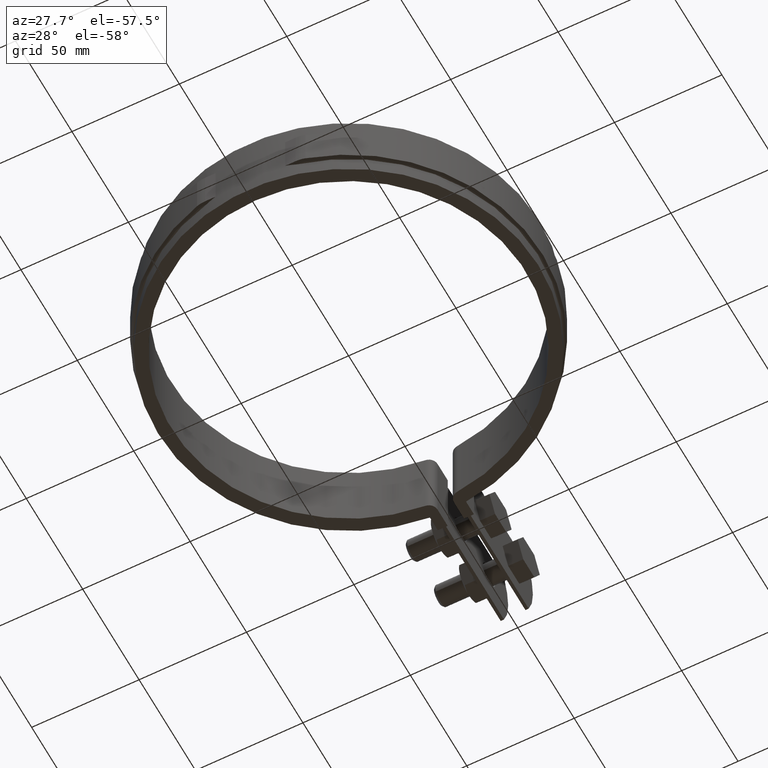
[diagram: clean part render]
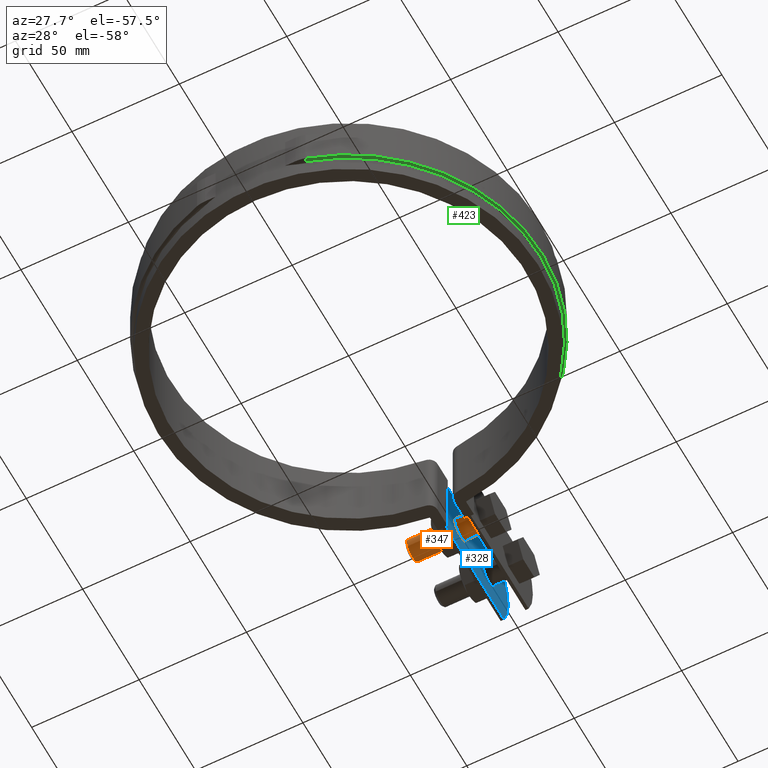
[diagram: same view with three faces highlighted in distinct colors, each labeled with its STEP entity id]
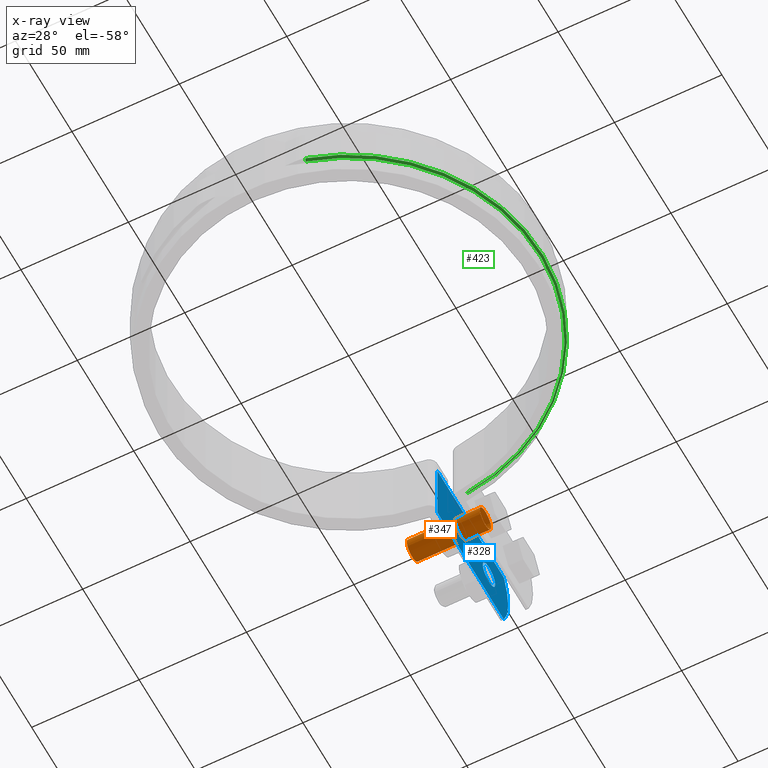
[diagram: x-ray of the same camera — body ghosted, the three highlighted faces saturated]
A machine part, auxiliary view with three faces highlighted in distinct colors.
The next image is the same camera in x-ray (body ghosted, the three faces saturated) — at least one of them is partly hidden behind the body in this view.
Their STEP definitions:

[orange] entity #347 — the highlighted cylindrical surface (bore or boss wall) has radius 5 mm, axis along (-1, -0, 0).
#347 = ADVANCED_FACE( '', ( #548, #549 ), #550, .T. );
#548 = FACE_OUTER_BOUND( '', #1261, .T. );
#549 = FACE_OUTER_BOUND( '', #1262, .T. );
#550 = CYLINDRICAL_SURFACE( '', #1263, 4.99999999999852 );
#1261 = EDGE_LOOP( '', ( #2906 ) );
#1262 = EDGE_LOOP( '', ( #2907 ) );
#1263 = AXIS2_PLACEMENT_3D( '', #2908, #2909, #2910 );
#2906 = ORIENTED_EDGE( '', *, *, #4700, .T. );
#2907 = ORIENTED_EDGE( '', *, *, #4694, .F. );
#2908 = CARTESIAN_POINT( '', ( -28.5000000000000, 109.002813742385, -16.0000000000000 ) );
#2909 = DIRECTION( '', ( -1.00000000000000, -6.26427921880513E-017, 0.000000000000000 ) );
#2910 = DIRECTION( '', ( 5.42502493988419E-017, -0.866025403784439, -0.500000000000000 ) );
#4694 = EDGE_CURVE( '', #5142, #5142, #5143, .T. );
#4700 = EDGE_CURVE( '', #5152, #5152, #5153, .T. );
#5142 = VERTEX_POINT( '', #6820 );
#5143 = CIRCLE( '', #6821, 4.99999999999852 );
#5152 = VERTEX_POINT( '', #6835 );
#5153 = CIRCLE( '', #6836, 4.99999999999852 );
#6820 = CARTESIAN_POINT( '', ( 6.50000000000000, 104.672686723464, -18.4999999999993 ) );
#6821 = AXIS2_PLACEMENT_3D( '', #8728, #8729, #8730 );
#6835 = CARTESIAN_POINT( '', ( -27.5000000000000, 104.672686723464, -18.4999999999993 ) );
#6836 = AXIS2_PLACEMENT_3D( '', #8736, #8737, #8738 );
#8728 = CARTESIAN_POINT( '', ( 6.50000000000000, 109.002813742385, -16.0000000000000 ) );
#8729 = DIRECTION( '', ( 1.00000000000000, 6.26427921880513E-017, 0.000000000000000 ) );
#8730 = DIRECTION( '', ( 5.42502493988419E-017, -0.866025403784439, -0.500000000000000 ) );
#8736 = CARTESIAN_POINT( '', ( -27.5000000000000, 109.002813742385, -16.0000000000000 ) );
#8737 = DIRECTION( '', ( 1.00000000000000, 6.26427921880513E-017, 0.000000000000000 ) );
#8738 = DIRECTION( '', ( 5.42502493988419E-017, -0.866025403784439, -0.500000000000000 ) );

[blue] entity #328 — the highlighted planar face has unit normal (1, -0, 0).
#328 = ADVANCED_FACE( '', ( #498, #499, #500 ), #501, .T. );
#498 = FACE_BOUND( '', #838, .T. );
#499 = FACE_BOUND( '', #839, .T. );
#500 = FACE_OUTER_BOUND( '', #840, .T. );
#501 = PLANE( '', #841 );
#838 = EDGE_LOOP( '', ( #2740 ) );
#839 = EDGE_LOOP( '', ( #2741 ) );
#840 = EDGE_LOOP( '', ( #2742, #2743, #2744, #2745 ) );
#841 = AXIS2_PLACEMENT_3D( '', #2746, #2747, #2748 );
#2740 = ORIENTED_EDGE( '', *, *, #4653, .T. );
#2741 = ORIENTED_EDGE( '', *, *, #4613, .T. );
#2742 = ORIENTED_EDGE( '', *, *, #4655, .T. );
#2743 = ORIENTED_EDGE( '', *, *, #4656, .T. );
#2744 = ORIENTED_EDGE( '', *, *, #4657, .F. );
#2745 = ORIENTED_EDGE( '', *, *, #4658, .T. );
#2746 = CARTESIAN_POINT( '', ( -4.99999999999999, 151.002813742386, 0.000000000000000 ) );
#2747 = DIRECTION( '', ( 1.00000000000000, -6.07153216591882E-017, 0.000000000000000 ) );
#2748 = DIRECTION( '', ( -6.07153216591882E-017, -1.00000000000000, 0.000000000000000 ) );
#4613 = EDGE_CURVE( '', #5004, #5004, #5005, .T. );
#4653 = EDGE_CURVE( '', #5074, #5074, #5075, .T. );
#4655 = EDGE_CURVE( '', #5078, #5079, #5080, .T. );
#4656 = EDGE_CURVE( '', #5079, #5081, #5082, .T. );
#4657 = EDGE_CURVE( '', #5083, #5081, #5084, .T. );
#4658 = EDGE_CURVE( '', #5083, #5078, #5085, .T. );
#5004 = VERTEX_POINT( '', #5897 );
#5005 = CIRCLE( '', #5898, 5.50000000000000 );
#5074 = VERTEX_POINT( '', #6667 );
#5075 = CIRCLE( '', #6668, 5.50000000000000 );
#5078 = VERTEX_POINT( '', #6671 );
#5079 = VERTEX_POINT( '', #6672 );
#5080 = LINE( '', #6673, #6674 );
#5081 = VERTEX_POINT( '', #6675 );
#5082 = LINE( '', #6676, #6677 );
#5083 = VERTEX_POINT( '', #6678 );
#5084 = LINE( '', #6679, #6680 );
#5085 = CIRCLE( '', #6681, 36.0000000000000 );
#5897 = CARTESIAN_POINT( '', ( -4.99999850011914, 109.002813742385, -10.5000000000000 ) );
#5898 = AXIS2_PLACEMENT_3D( '', #8614, #8615, #8616 );
#6667 = CARTESIAN_POINT( '', ( -4.99999850011914, 134.002813742385, -10.5000000000000 ) );
#6668 = AXIS2_PLACEMENT_3D( '', #8658, #8659, #8660 );
#6671 = CARTESIAN_POINT( '', ( -4.99999999999999, 147.251844735580, 0.000000000000000 ) );
#6672 = CARTESIAN_POINT( '', ( -4.99999999999999, 88.2723059628557, 0.000000000000000 ) );
#6673 = CARTESIAN_POINT( '', ( -4.99999999999999, 151.002813742386, 0.000000000000000 ) );
#6674 = VECTOR( '', #8664, 1000.00000000000 );
#6675 = CARTESIAN_POINT( '', ( -4.99999999999999, 88.2723059628557, -32.0000000000000 ) );
#6676 = CARTESIAN_POINT( '', ( -4.99999999999999, 88.2723059628557, 0.000000000000000 ) );
#6677 = VECTOR( '', #8665, 1000.00000000000 );
#6678 = CARTESIAN_POINT( '', ( -4.99999999999999, 147.251844735580, -32.0000000000000 ) );
#6679 = CARTESIAN_POINT( '', ( -4.99999999999999, 151.002813742386, -32.0000000000000 ) );
#6680 = VECTOR( '', #8666, 1000.00000000000 );
#6681 = AXIS2_PLACEMENT_3D( '', #8667, #8668, #8669 );
#8614 = CARTESIAN_POINT( '', ( -4.99999850011914, 109.002813742385, -16.0000000000000 ) );
#8615 = DIRECTION( '', ( -1.00000000000000, -4.12391080879941E-016, 0.000000000000000 ) );
#8616 = DIRECTION( '', ( 0.000000000000000, 0.000000000000000, 1.00000000000000 ) );
#8658 = CARTESIAN_POINT( '', ( -4.99999850011914, 134.002813742385, -16.0000000000000 ) );
#8659 = DIRECTION( '', ( -1.00000000000000, -4.12391080879941E-016, 0.000000000000000 ) );
#8660 = DIRECTION( '', ( 0.000000000000000, 0.000000000000000, 1.00000000000000 ) );
#8664 = DIRECTION( '', ( -6.07153216591882E-017, -1.00000000000000, 0.000000000000000 ) );
#8665 = DIRECTION( '', ( 0.000000000000000, 0.000000000000000, -1.00000000000000 ) );
#8666 = DIRECTION( '', ( -6.07153216591882E-017, -1.00000000000000, 0.000000000000000 ) );
#8667 = CARTESIAN_POINT( '', ( -4.99999999999998, 115.002813742385, -16.0000000000000 ) );
#8668 = DIRECTION( '', ( 1.00000000000000, -6.07153216591882E-017, 0.000000000000000 ) );
#8669 = DIRECTION( '', ( 6.07153216591882E-017, 1.00000000000000, 0.000000000000000 ) );

[green] entity #423 — the highlighted conical surface has half-angle 45 deg.
#423 = ADVANCED_FACE( '', ( #710 ), #711, .T. );
#710 = FACE_OUTER_BOUND( '', #1796, .T. );
#711 = CONICAL_SURFACE( '', #1797, 90.0000000000000, 0.785398163397441 );
#1796 = EDGE_LOOP( '', ( #4256, #4257, #4258, #4259 ) );
#1797 = AXIS2_PLACEMENT_3D( '', #4260, #4261, #4262 );
#4256 = ORIENTED_EDGE( '', *, *, #4908, .F. );
#4257 = ORIENTED_EDGE( '', *, *, #4891, .F. );
#4258 = ORIENTED_EDGE( '', *, *, #4910, .F. );
#4259 = ORIENTED_EDGE( '', *, *, #4884, .F. );
#4260 = CARTESIAN_POINT( '', ( 1.38777878078145E-014, -4.16333634234434E-014, -25.0000000000000 ) );
#4261 = DIRECTION( '', ( 0.000000000000000, 0.000000000000000, 1.00000000000000 ) );
#4262 = DIRECTION( '', ( 1.00000000000000, 0.000000000000000, 0.000000000000000 ) );
#4884 = EDGE_CURVE( '', #5465, #5461, #5467, .F. );
#4891 = EDGE_CURVE( '', #5478, #5473, #5480, .T. );
#4908 = EDGE_CURVE( '', #5473, #5465, #5501, .T. );
#4910 = EDGE_CURVE( '', #5461, #5478, #5503, .T. );
#5461 = VERTEX_POINT( '', #8305 );
#5465 = VERTEX_POINT( '', #8310 );
#5467 = CIRCLE( '', #8313, 89.0000000000000 );
#5473 = VERTEX_POINT( '', #8322 );
#5478 = VERTEX_POINT( '', #8328 );
#5480 = CIRCLE( '', #8331, 90.0000000000000 );
#5501 = B_SPLINE_CURVE_WITH_KNOTS( '', 3, ( #8360, #8361, #8362, #8363 ), .UNSPECIFIED., .F., .F., ( 4, 4 ), ( 3.46944695195361E-017, 0.00141735220717068 ), .UNSPECIFIED. );
#5503 = LINE( '', #8368, #8369 );
#8305 = CARTESIAN_POINT( '', ( 24.9200000000000, -85.4400000000000, -26.0000000000000 ) );
#8310 = CARTESIAN_POINT( '', ( 8.40000000000002, 88.6027087622043, -26.0000000000000 ) );
#8313 = AXIS2_PLACEMENT_3D( '', #8992, #8993, #8994 );
#8322 = CARTESIAN_POINT( '', ( 8.39999999999997, 89.6071425724534, -25.0000000000000 ) );
#8328 = CARTESIAN_POINT( '', ( 25.2000000000000, -86.4000000000000, -25.0000000000000 ) );
#8331 = AXIS2_PLACEMENT_3D( '', #9003, #9004, #9005 );
#8360 = CARTESIAN_POINT( '', ( 8.39999999999997, 89.6071425724534, -25.0000000000000 ) );
#8361 = CARTESIAN_POINT( '', ( 8.39999999999997, 89.2723395311518, -25.3333415983956 ) );
#8362 = CARTESIAN_POINT( '', ( 8.40000000000000, 88.9375283537308, -25.6666750252145 ) );
#8363 = CARTESIAN_POINT( '', ( 8.40000000000000, 88.6027087622043, -26.0000000000000 ) );
#8368 = CARTESIAN_POINT( '', ( 24.9200000000000, -85.4400000000000, -26.0000000000000 ) );
#8369 = VECTOR( '', #9038, 1000.00000000000 );
#8992 = CARTESIAN_POINT( '', ( 1.38777878078145E-014, -4.16333634234434E-014, -26.0000000000000 ) );
#8993 = DIRECTION( '', ( 0.000000000000000, 0.000000000000000, 1.00000000000000 ) );
#8994 = DIRECTION( '', ( 1.00000000000000, 0.000000000000000, 0.000000000000000 ) );
#9003 = CARTESIAN_POINT( '', ( 1.38777878078145E-014, -4.16333634234434E-014, -25.0000000000000 ) );
#9004 = DIRECTION( '', ( 0.000000000000000, 0.000000000000000, 1.00000000000000 ) );
#9005 = DIRECTION( '', ( 1.00000000000000, 0.000000000000000, 0.000000000000000 ) );
#9038 = DIRECTION( '', ( 0.197989898732231, -0.678822509939081, 0.707106781186552 ) );